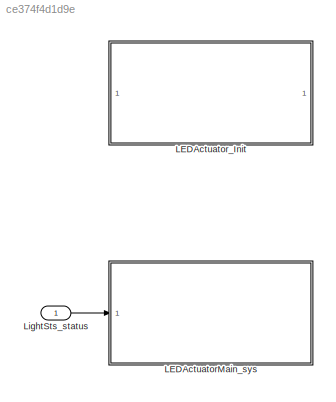
MODEL slx_ce374f4d1d9e
KIND model
CONFIG AbsTol = auto
CONFIG EnableMultiTasking = off
CONFIG FixedStep = 0.01
CONFIG MaxStep = auto
CONFIG MinStep = auto
CONFIG RelTol = 1e-3
CONFIG SampleTimeConstraint = Unconstrained
CONFIG Solver = FixedStepDiscrete
CONFIG SolverName = FixedStepDiscrete
CONFIG StartTime = 0.0
CONFIG StopTime = 10.0
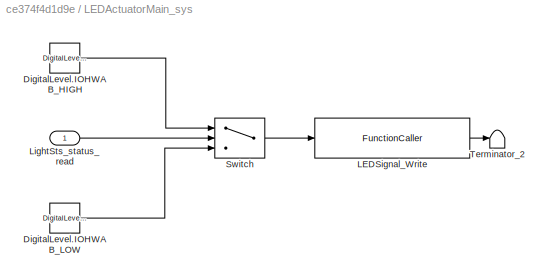
BLOCK [SubSystem] LEDActuatorMain_sys
  Ports = [1]
  RequestExecContextInheritance = off
  SystemSampleTime = 0.01
  TreatAsAtomicUnit = on
BLOCK [Constant] LEDActuatorMain_sys/DigitalLevel.IOHWAB_HIGH 
  Value = DigitalLevel.IOHWAB_HIGH
BLOCK [Constant] LEDActuatorMain_sys/DigitalLevel.IOHWAB_LOW 
  Value = DigitalLevel.IOHWAB_LOW
BLOCK [FunctionCaller] LEDActuatorMain_sys/LEDSignal_Write
  FunctionPrototype = ERR = LEDSignal_Write(Level)
  InputArgumentSpecifications = DigitalLevel(0)
  OutputArgumentSpecifications = P_Std_ReturnType
  Ports = [1, 1]
BLOCK [Inport] LEDActuatorMain_sys/LightSts_status_read
  IconDisplay = Port number
BLOCK [Switch] LEDActuatorMain_sys/Switch
  Criteria = u2 > Threshold
  InputSameDT = off
  SaturateOnIntegerOverflow = off
BLOCK [Terminator] LEDActuatorMain_sys/Terminator_2
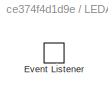
BLOCK [SubSystem] LEDActuator_Init
  Ports = []
  RequestExecContextInheritance = off
BLOCK [EventListener] LEDActuator_Init/Event Listener
  EventName = reset
BLOCK [Inport] LightSts_status
  IconDisplay = Port number
  OutDataTypeStr = LEDStatus
  PortDimensions = 1
  SamplingMode = Sample based
  SignalType = real
LINE LEDActuatorMain_sys/DigitalLevel.IOHWAB_HIGH :1 -> LEDActuatorMain_sys/Switch:1
LINE LEDActuatorMain_sys/DigitalLevel.IOHWAB_LOW :1 -> LEDActuatorMain_sys/Switch:3
LINE LEDActuatorMain_sys/LEDSignal_Write:1 -> LEDActuatorMain_sys/Terminator_2:1
LINE LEDActuatorMain_sys/LightSts_status_read:1 -> LEDActuatorMain_sys/Switch:2
LINE LEDActuatorMain_sys/Switch:1 -> LEDActuatorMain_sys/LEDSignal_Write:1
LINE LightSts_status:1 -> LEDActuatorMain_sys:1
